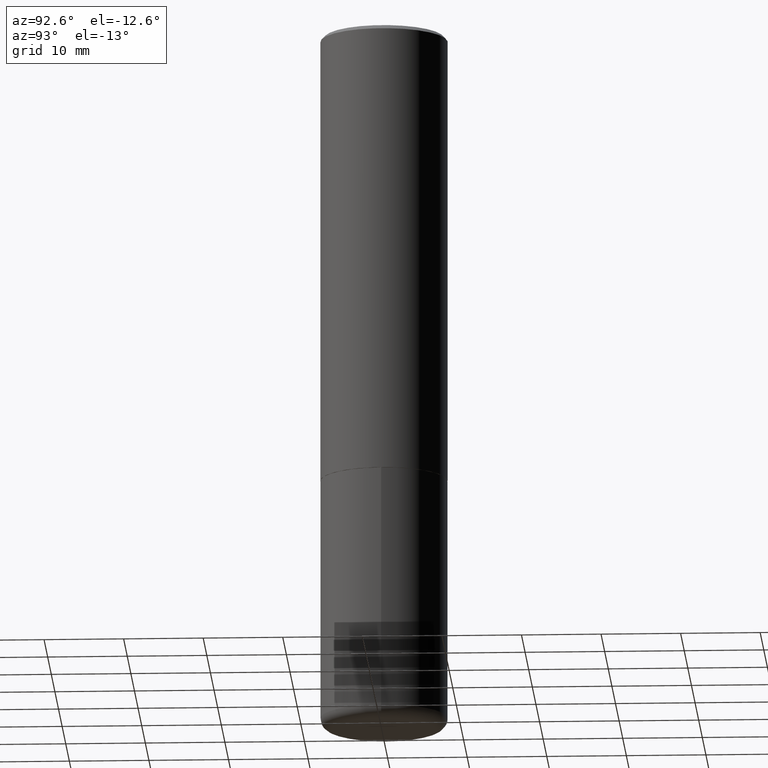
[diagram: clean part render]
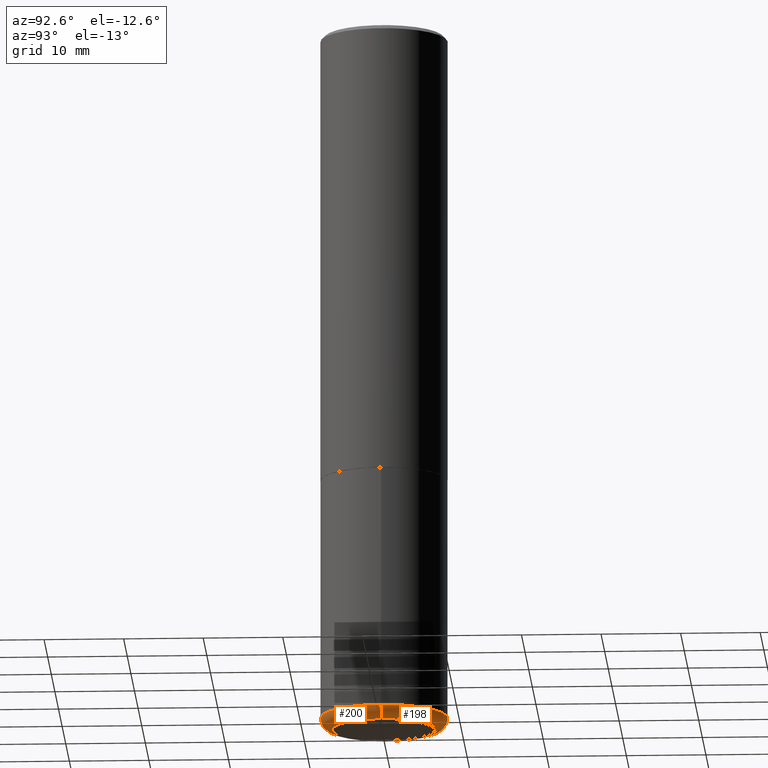
[diagram: same view with one multi-face feature highlighted, each face labeled with its STEP entity id]
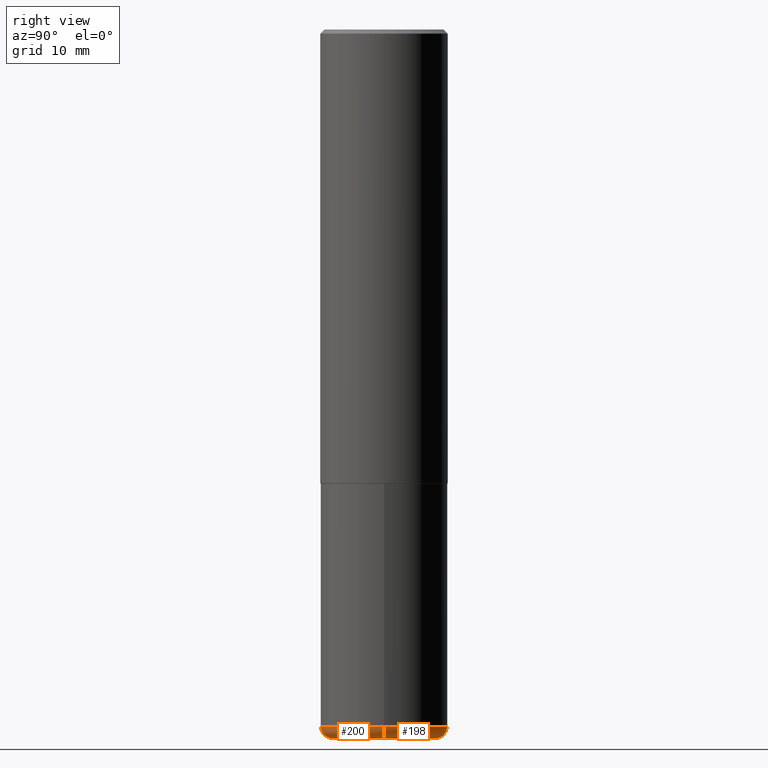
[diagram: same view with one multi-face feature highlighted, each face labeled with its STEP entity id]
A machine part, auxiliary view. The highlighted faces form ONE feature: a constant-radius fillet chain: 2 tangent blend faces with common blend radius 1.5011 mm. The faces share edges in the B-rep.
A second angle (right view) of the same feature is appended — it is thin or edge-on in the first view.
Their STEP definitions:
[1] entity #200 (Torus):
#5 = EDGE_CURVE ( 'NONE', #236, #306, #147, .T. ) ;
#25 = DIRECTION ( 'NONE',  ( -6.982962677686266711E-15, -1.000000000000000000, 3.491481338843145583E-15 ) ) ;
#29 = EDGE_CURVE ( 'NONE', #343, #362, #405, .T. ) ;
#50 = ORIENTED_EDGE ( 'NONE', *, *, #5, .F. ) ;
#61 = CARTESIAN_POINT ( 'NONE',  ( 8.568678149992099474E-29, -1.223380146317249786E-14, -3.503899999999999793 ) ) ;
#65 = DIRECTION ( 'NONE',  ( -2.445468806185136597E-29, 3.491481338843145583E-15, 1.000000000000000000 ) ) ;
#85 = AXIS2_PLACEMENT_3D ( 'NONE', #91, #409, #214 ) ;
#91 = CARTESIAN_POINT ( 'NONE',  ( 8.424150943546558141E-29, -1.202745491604686588E-14, -3.444799999999999862 ) ) ;
#99 = CARTESIAN_POINT ( 'NONE',  ( 8.424150943546558141E-29, -1.202745491604686588E-14, -3.444799999999999862 ) ) ;
#105 = EDGE_CURVE ( 'NONE', #236, #343, #155, .T. ) ;
#136 = TOROIDAL_SURFACE ( 'NONE', #365, 0.2558500000000000218, 0.05909999999999995812 ) ;
#147 = CIRCLE ( 'NONE', #301, 0.05909999999999999282 ) ;
#148 = CIRCLE ( 'NONE', #85, 0.3149500000000000077 ) ;
#155 = CIRCLE ( 'NONE', #386, 0.2558500000000000218 ) ;
#156 = DIRECTION ( 'NONE',  ( 1.000000000000000000, -6.982962677686263555E-15, 0.000000000000000000 ) ) ;
#165 = CARTESIAN_POINT ( 'NONE',  ( 0.2558500000000000218, -1.402039246425852851E-14, -3.503899999999999793 ) ) ;
#173 = EDGE_CURVE ( 'NONE', #306, #362, #148, .T. ) ;
#179 = EDGE_LOOP ( 'NONE', ( #50, #180, #408, #271 ) ) ;
#180 = ORIENTED_EDGE ( 'NONE', *, *, #105, .T. ) ;
#200 = ADVANCED_FACE ( 'NONE', ( #281 ), #136, .T. ) ;
#214 = DIRECTION ( 'NONE',  ( 1.000000000000000000, -6.982962677686263555E-15, 0.000000000000000000 ) ) ;
#217 = CARTESIAN_POINT ( 'NONE',  ( 0.2558500000000000218, -1.381404591713289811E-14, -3.444799999999999862 ) ) ;
#221 = AXIS2_PLACEMENT_3D ( 'NONE', #217, #25, #311 ) ;
#236 = VERTEX_POINT ( 'NONE', #254 ) ;
#254 = CARTESIAN_POINT ( 'NONE',  ( -0.2558500000000000218, -1.010273922175035445E-14, -3.503899999999999793 ) ) ;
#257 = DIRECTION ( 'NONE',  ( -2.445468806185136597E-29, 3.491481338843145583E-15, 1.000000000000000000 ) ) ;
#271 = ORIENTED_EDGE ( 'NONE', *, *, #173, .F. ) ;
#278 = DIRECTION ( 'NONE',  ( -1.000000000000000000, 7.105427357600993181E-15, 0.000000000000000000 ) ) ;
#280 = CARTESIAN_POINT ( 'NONE',  ( -0.2558500000000000218, -1.020953132660465019E-14, -3.444799999999999862 ) ) ;
#281 = FACE_OUTER_BOUND ( 'NONE', #179, .T. ) ;
#301 = AXIS2_PLACEMENT_3D ( 'NONE', #280, #318, #278 ) ;
#306 = VERTEX_POINT ( 'NONE', #382 ) ;
#311 = DIRECTION ( 'NONE',  ( 1.000000000000000000, -6.982962677686262766E-15, 0.000000000000000000 ) ) ;
#318 = DIRECTION ( 'NONE',  ( 7.105427357601001859E-15, 1.000000000000000000, -3.491481338843145583E-15 ) ) ;
#343 = VERTEX_POINT ( 'NONE', #165 ) ;
#362 = VERTEX_POINT ( 'NONE', #376 ) ;
#365 = AXIS2_PLACEMENT_3D ( 'NONE', #99, #257, #418 ) ;
#376 = CARTESIAN_POINT ( 'NONE',  ( 0.3149500000000000077, -1.422673901138415575E-14, -3.444799999999999862 ) ) ;
#382 = CARTESIAN_POINT ( 'NONE',  ( -0.3149500000000000077, -9.789600569770431475E-15, -3.444799999999999862 ) ) ;
#386 = AXIS2_PLACEMENT_3D ( 'NONE', #61, #65, #156 ) ;
#405 = CIRCLE ( 'NONE', #221, 0.05909999999999999282 ) ;
#408 = ORIENTED_EDGE ( 'NONE', *, *, #29, .T. ) ;
#409 = DIRECTION ( 'NONE',  ( -2.445468806185136597E-29, 3.491481338843145583E-15, 1.000000000000000000 ) ) ;
#418 = DIRECTION ( 'NONE',  ( 1.000000000000000000, -6.982962677686263555E-15, 4.883557194083111780E-29 ) ) ;
[2] entity #198 (Torus):
#5 = EDGE_CURVE ( 'NONE', #236, #306, #147, .T. ) ;
#6 = DIRECTION ( 'NONE',  ( 1.000000000000000000, -6.982962677686263555E-15, 0.000000000000000000 ) ) ;
#11 = ORIENTED_EDGE ( 'NONE', *, *, #42, .F. ) ;
#24 = TOROIDAL_SURFACE ( 'NONE', #209, 0.2558500000000000218, 0.05909999999999995812 ) ;
#25 = DIRECTION ( 'NONE',  ( -6.982962677686266711E-15, -1.000000000000000000, 3.491481338843145583E-15 ) ) ;
#27 = ORIENTED_EDGE ( 'NONE', *, *, #5, .T. ) ;
#29 = EDGE_CURVE ( 'NONE', #343, #362, #405, .T. ) ;
#38 = CARTESIAN_POINT ( 'NONE',  ( 8.424150943546558141E-29, -1.202745491604686588E-14, -3.444799999999999862 ) ) ;
#42 = EDGE_CURVE ( 'NONE', #362, #306, #379, .T. ) ;
#77 = DIRECTION ( 'NONE',  ( -2.445468806185136597E-29, 3.491481338843145583E-15, 1.000000000000000000 ) ) ;
#107 = EDGE_LOOP ( 'NONE', ( #340, #27, #11, #298 ) ) ;
#122 = AXIS2_PLACEMENT_3D ( 'NONE', #330, #77, #6 ) ;
#147 = CIRCLE ( 'NONE', #301, 0.05909999999999999282 ) ;
#165 = CARTESIAN_POINT ( 'NONE',  ( 0.2558500000000000218, -1.402039246425852851E-14, -3.503899999999999793 ) ) ;
#184 = DIRECTION ( 'NONE',  ( 1.000000000000000000, -6.982962677686263555E-15, 0.000000000000000000 ) ) ;
#193 = DIRECTION ( 'NONE',  ( -2.445468806185136597E-29, 3.491481338843145583E-15, 1.000000000000000000 ) ) ;
#198 = ADVANCED_FACE ( 'NONE', ( #227 ), #24, .T. ) ;
#202 = AXIS2_PLACEMENT_3D ( 'NONE', #349, #371, #184 ) ;
#209 = AXIS2_PLACEMENT_3D ( 'NONE', #38, #193, #288 ) ;
#217 = CARTESIAN_POINT ( 'NONE',  ( 0.2558500000000000218, -1.381404591713289811E-14, -3.444799999999999862 ) ) ;
#221 = AXIS2_PLACEMENT_3D ( 'NONE', #217, #25, #311 ) ;
#227 = FACE_OUTER_BOUND ( 'NONE', #107, .T. ) ;
#236 = VERTEX_POINT ( 'NONE', #254 ) ;
#249 = CIRCLE ( 'NONE', #122, 0.2558500000000000218 ) ;
#254 = CARTESIAN_POINT ( 'NONE',  ( -0.2558500000000000218, -1.010273922175035445E-14, -3.503899999999999793 ) ) ;
#278 = DIRECTION ( 'NONE',  ( -1.000000000000000000, 7.105427357600993181E-15, 0.000000000000000000 ) ) ;
#280 = CARTESIAN_POINT ( 'NONE',  ( -0.2558500000000000218, -1.020953132660465019E-14, -3.444799999999999862 ) ) ;
#288 = DIRECTION ( 'NONE',  ( 1.000000000000000000, -6.982962677686263555E-15, 4.883557194083111780E-29 ) ) ;
#298 = ORIENTED_EDGE ( 'NONE', *, *, #29, .F. ) ;
#301 = AXIS2_PLACEMENT_3D ( 'NONE', #280, #318, #278 ) ;
#306 = VERTEX_POINT ( 'NONE', #382 ) ;
#311 = DIRECTION ( 'NONE',  ( 1.000000000000000000, -6.982962677686262766E-15, 0.000000000000000000 ) ) ;
#318 = DIRECTION ( 'NONE',  ( 7.105427357601001859E-15, 1.000000000000000000, -3.491481338843145583E-15 ) ) ;
#330 = CARTESIAN_POINT ( 'NONE',  ( 8.568678149992099474E-29, -1.223380146317249786E-14, -3.503899999999999793 ) ) ;
#340 = ORIENTED_EDGE ( 'NONE', *, *, #384, .T. ) ;
#343 = VERTEX_POINT ( 'NONE', #165 ) ;
#349 = CARTESIAN_POINT ( 'NONE',  ( 8.424150943546558141E-29, -1.202745491604686588E-14, -3.444799999999999862 ) ) ;
#362 = VERTEX_POINT ( 'NONE', #376 ) ;
#371 = DIRECTION ( 'NONE',  ( -2.445468806185136597E-29, 3.491481338843145583E-15, 1.000000000000000000 ) ) ;
#376 = CARTESIAN_POINT ( 'NONE',  ( 0.3149500000000000077, -1.422673901138415575E-14, -3.444799999999999862 ) ) ;
#379 = CIRCLE ( 'NONE', #202, 0.3149500000000000077 ) ;
#382 = CARTESIAN_POINT ( 'NONE',  ( -0.3149500000000000077, -9.789600569770431475E-15, -3.444799999999999862 ) ) ;
#384 = EDGE_CURVE ( 'NONE', #343, #236, #249, .T. ) ;
#405 = CIRCLE ( 'NONE', #221, 0.05909999999999999282 ) ;